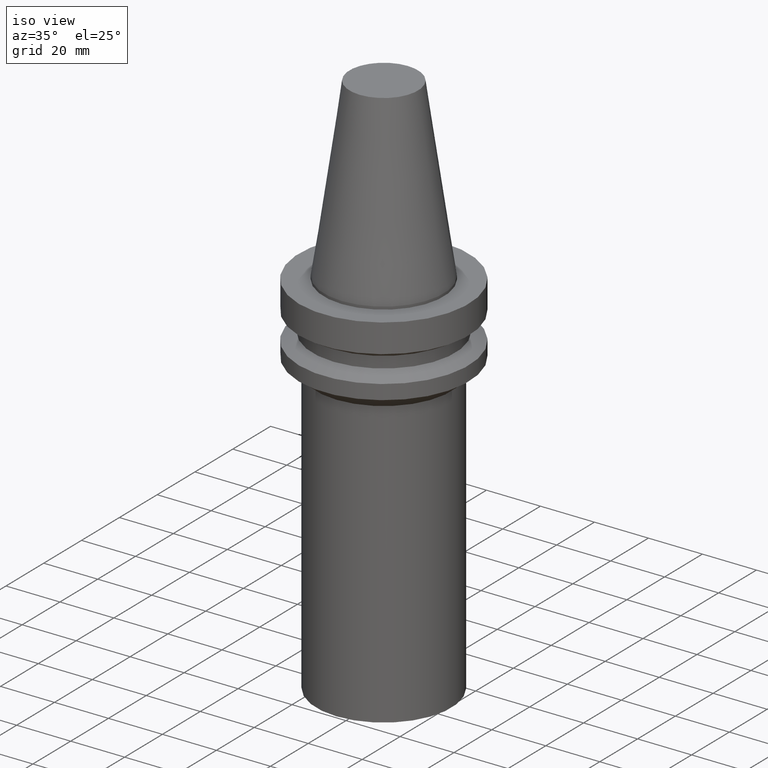
[diagram: clean part render]
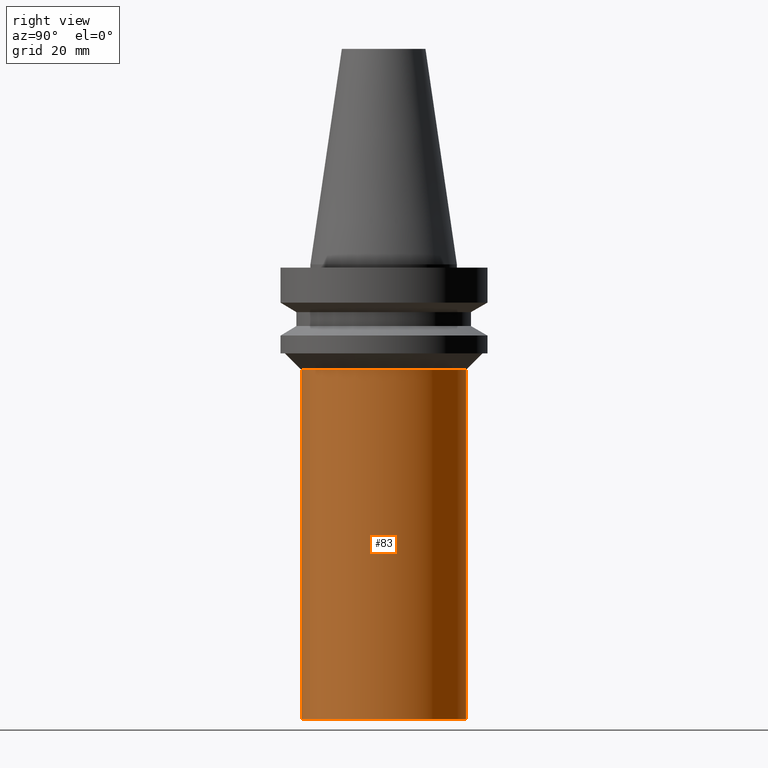
[diagram: tour spotlight — one face highlighted and labeled with its STEP entity id]
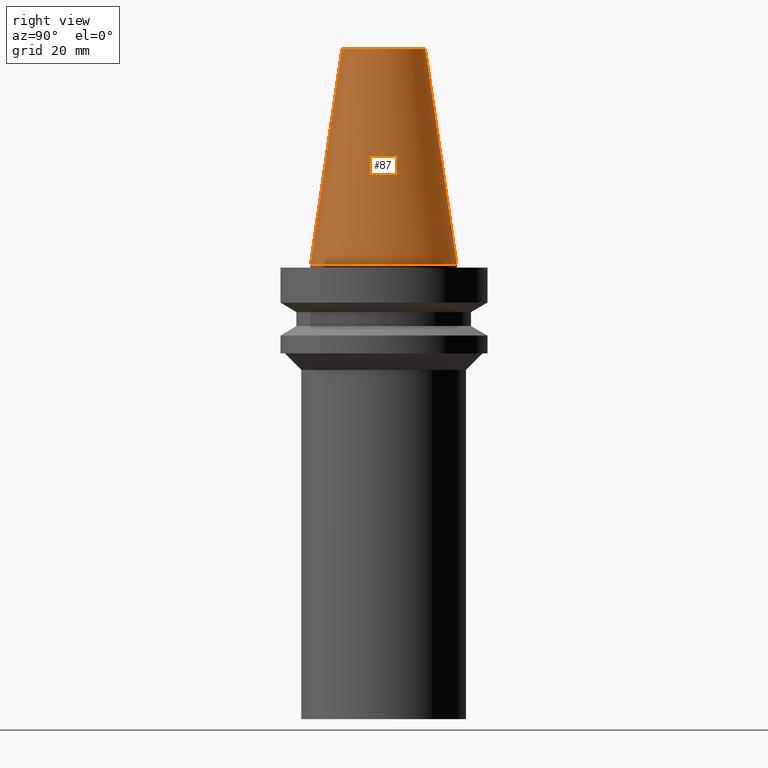
[diagram: tour spotlight — one face highlighted and labeled with its STEP entity id]
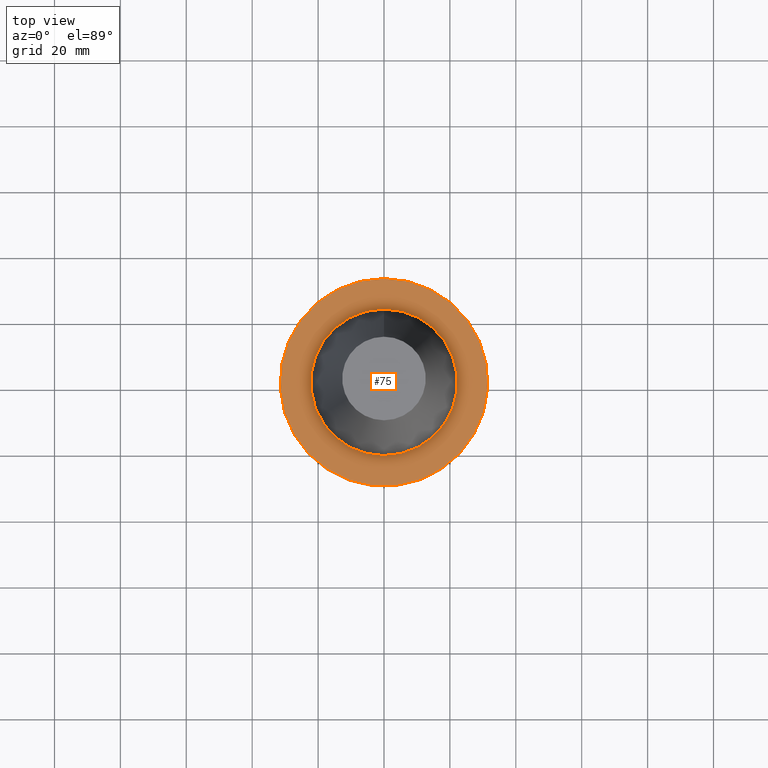
[diagram: tour spotlight — one face highlighted and labeled with its STEP entity id]
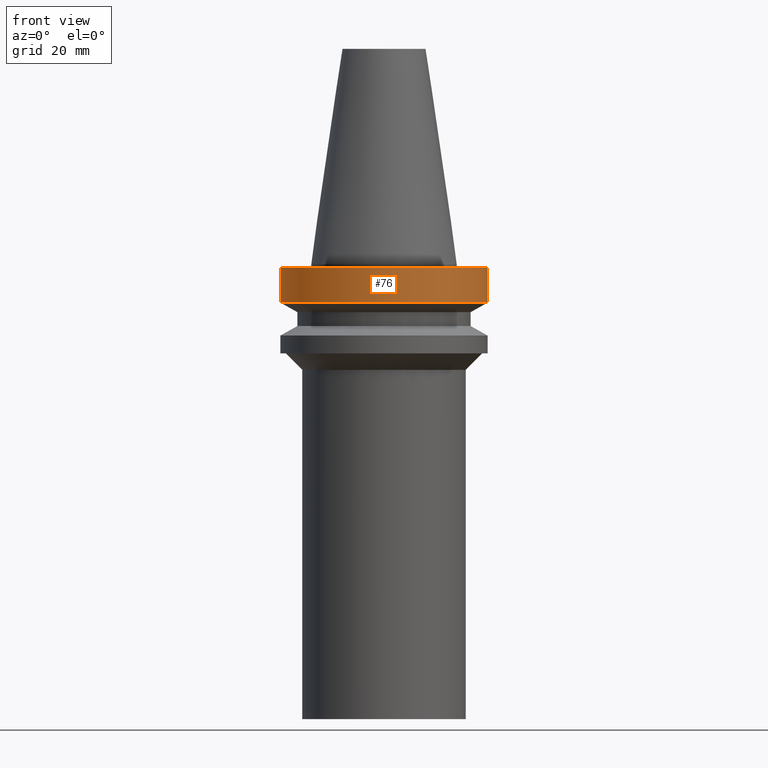
[diagram: tour spotlight — one face highlighted and labeled with its STEP entity id]
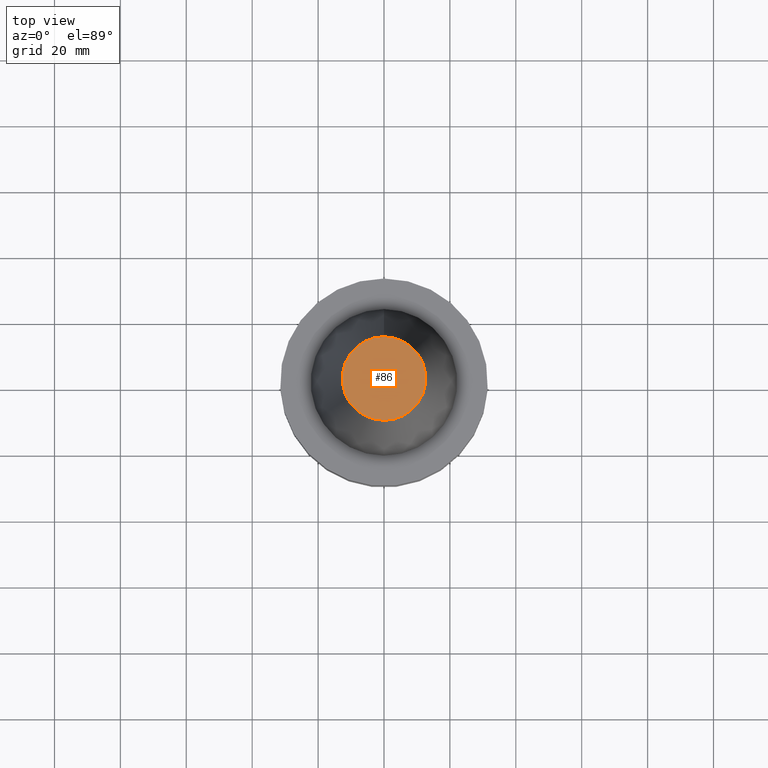
[diagram: tour spotlight — one face highlighted and labeled with its STEP entity id]
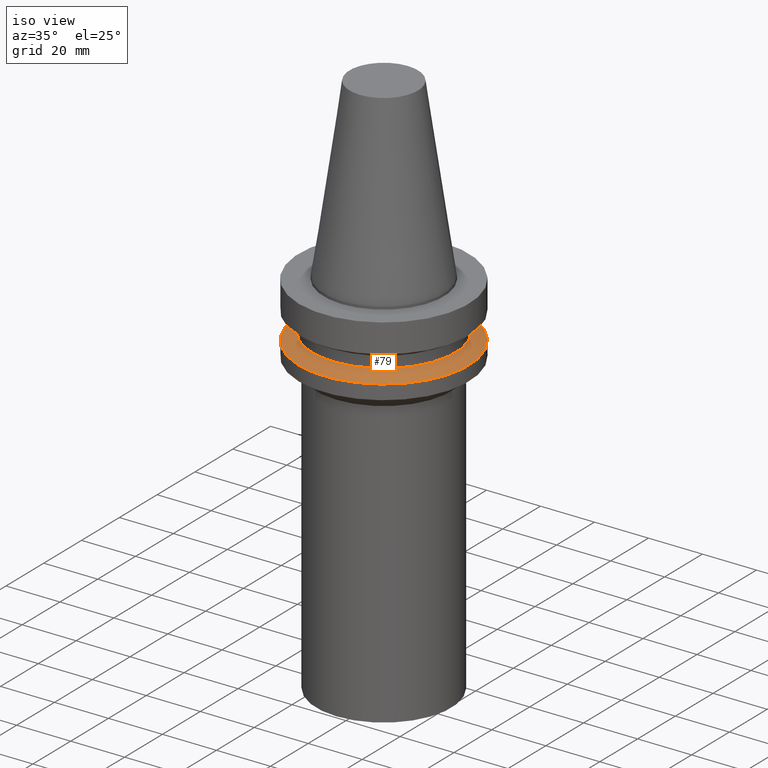
[diagram: tour spotlight — one face highlighted and labeled with its STEP entity id]
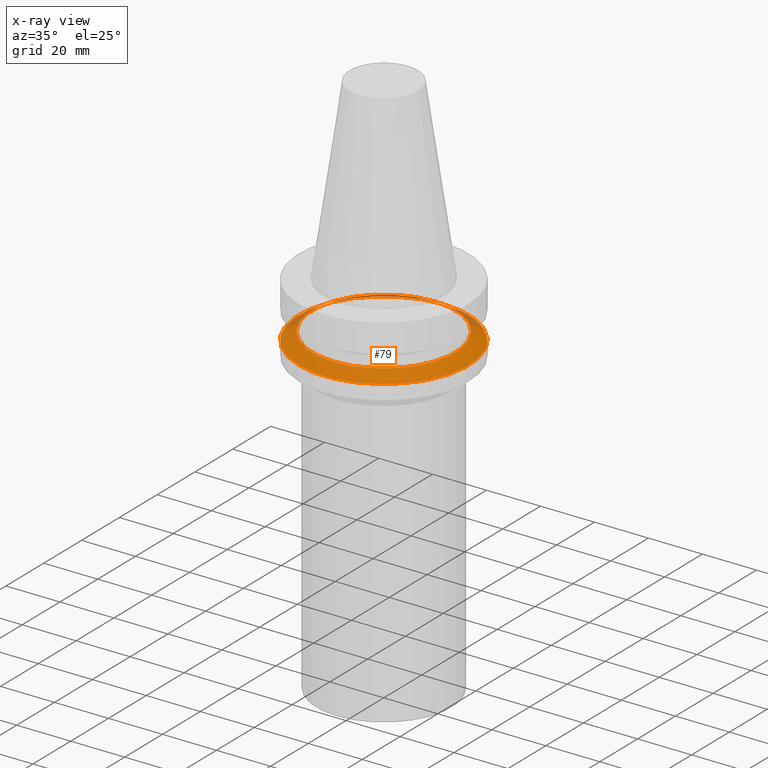
[diagram: x-ray of the same camera — body ghosted, this tour face saturated]
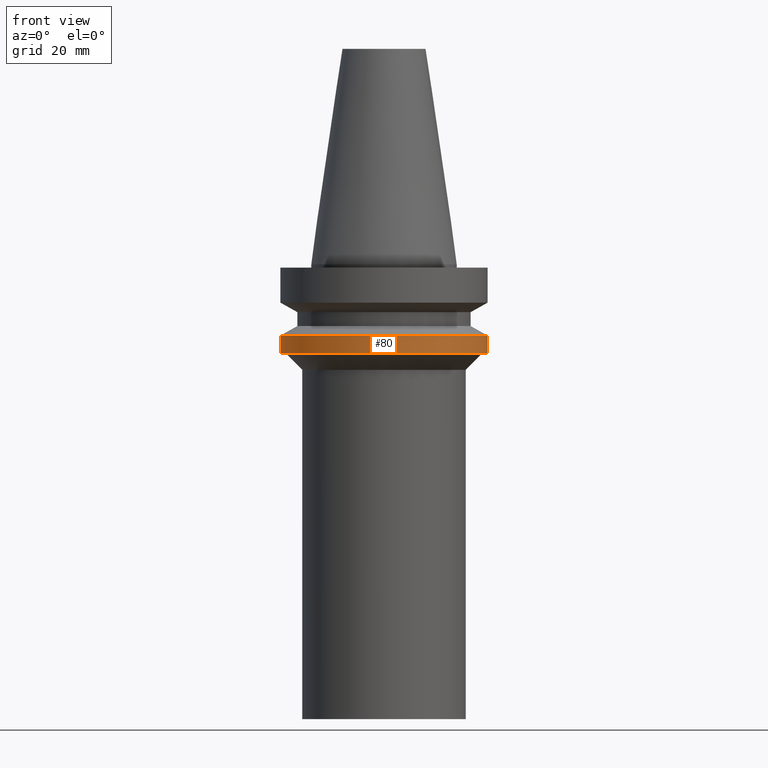
[diagram: tour spotlight — one face highlighted and labeled with its STEP entity id]
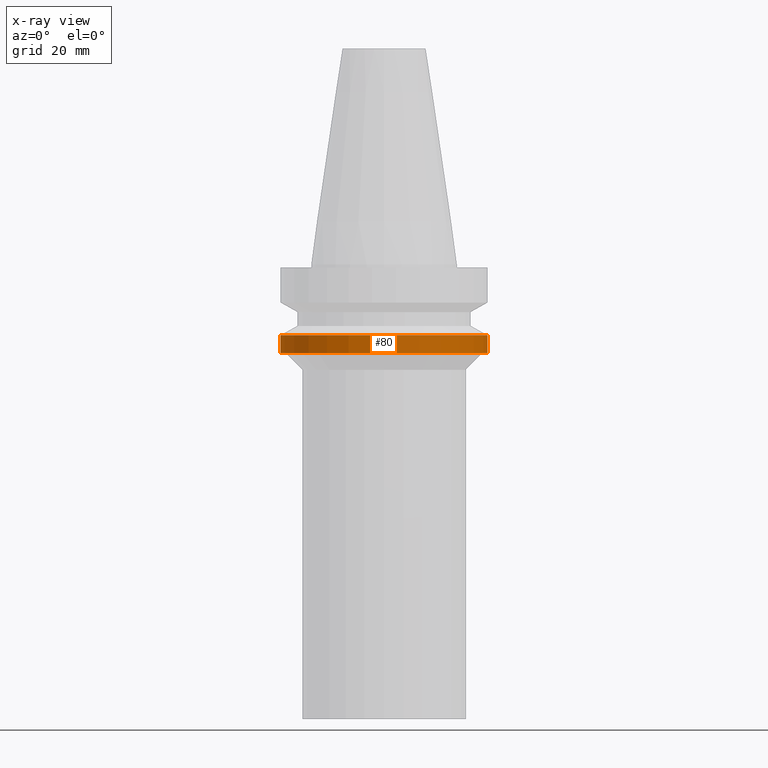
[diagram: x-ray of the same camera — body ghosted, this tour face saturated]
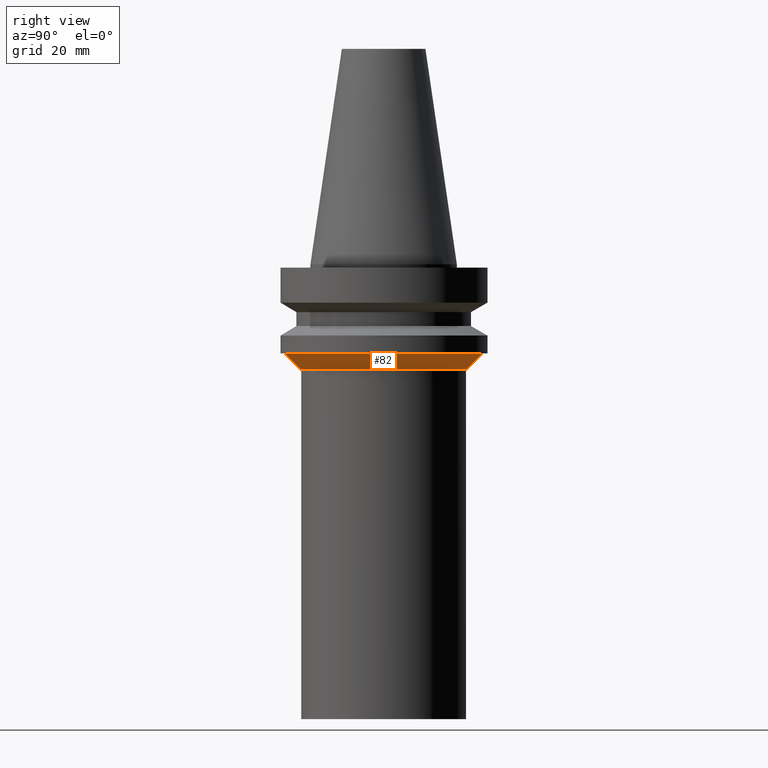
[diagram: tour spotlight — one face highlighted and labeled with its STEP entity id]
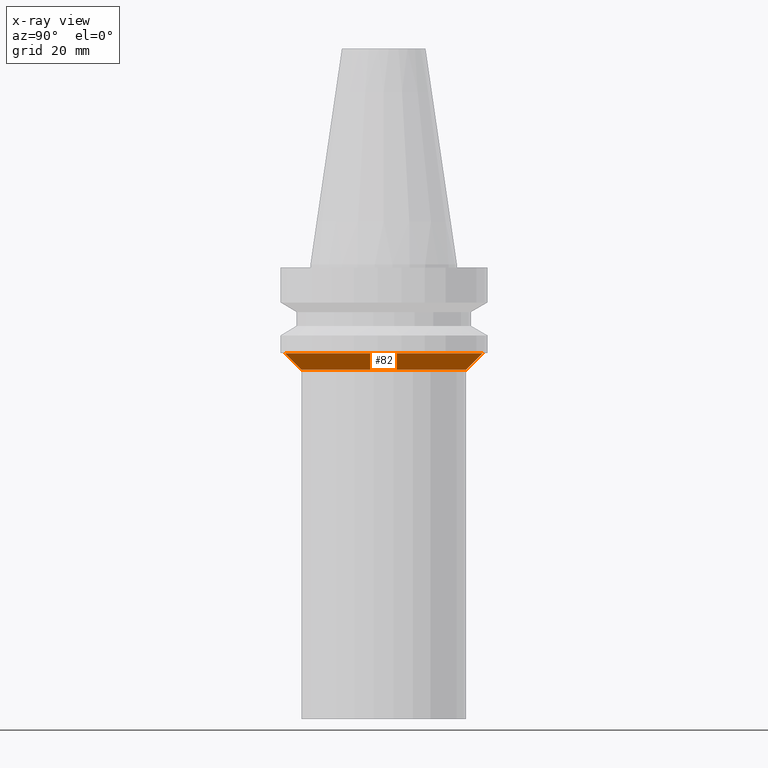
[diagram: x-ray of the same camera — body ghosted, this tour face saturated]
A machine part: a face-by-face anatomy tour. The part has 13 B-rep faces; the first image is the clean iso view, then the 8 largest visible faces are spotlighted one at a time (largest first), each with its STEP entity span.

Face 1 — right view, entity #83. In plain terms, the highlighted cylindrical surface (bore or boss wall) has radius 25 mm, axis along (-0, -0, 1).
Definition (entity closure, byte-faithful):
#83=ADVANCED_FACE('',(#113,#114),#115,.T.);
#113=FACE_BOUND('',#150,.T.);
#114=FACE_BOUND('',#151,.T.);
#115=CYLINDRICAL_SURFACE('',#152,25.0);
#150=EDGE_LOOP('',(#203));
#151=EDGE_LOOP('',(#204));
#152=AXIS2_PLACEMENT_3D('',#205,#206,#207);
#203=ORIENTED_EDGE('',*,*,#235,.F.);
#204=ORIENTED_EDGE('',*,*,#234,.T.);
#205=CARTESIAN_POINT('',(5.20474889637625E-015,1.04094977927525E-014,-85.0));
#206=DIRECTION('',(-6.12323399573677E-017,-1.22464679914735E-016,1.0));
#207=DIRECTION('',(-1.23259516440783E-032,1.0,1.22464679914735E-016));
#234=EDGE_CURVE('',#254,#254,#255,.T.);
#235=EDGE_CURVE('',#256,#256,#257,.T.);
#254=VERTEX_POINT('',#278);
#255=CIRCLE('',#279,25.0);
#256=VERTEX_POINT('',#280);
#257=CIRCLE('',#281,25.0);
#278=CARTESIAN_POINT('',(1.95943487863576E-015,25.0,-32.0));
#279=AXIS2_PLACEMENT_3D('',#310,#311,#312);
#280=CARTESIAN_POINT('',(8.45006291411674E-015,25.0,-138.0));
#281=AXIS2_PLACEMENT_3D('',#313,#314,#315);
#310=CARTESIAN_POINT('',(1.95943487863577E-015,3.91886975727153E-015,-32.0));
#311=DIRECTION('',(6.12323399573677E-017,1.22464679914735E-016,-1.0));
#312=DIRECTION('',(-1.23259516440783E-032,1.0,1.22464679914735E-016));
#313=CARTESIAN_POINT('',(8.45006291411674E-015,1.69001258282335E-014,-138.0));
#314=DIRECTION('',(6.12323399573677E-017,1.22464679914735E-016,-1.0));
#315=DIRECTION('',(-1.23259516440783E-032,1.0,1.22464679914735E-016));

Face 2 — right view, entity #87. In plain terms, the highlighted conical surface has half-angle 8.297 deg.
Definition (entity closure, byte-faithful):
#87=ADVANCED_FACE('',(#123,#124),#125,.T.);
#123=FACE_BOUND('',#160,.T.);
#124=FACE_BOUND('',#161,.T.);
#125=CONICAL_SURFACE('',#162,17.4562500026599,0.144812498159292);
#160=EDGE_LOOP('',(#221));
#161=EDGE_LOOP('',(#222));
#162=AXIS2_PLACEMENT_3D('',#223,#224,#225);
#221=ORIENTED_EDGE('',*,*,#236,.F.);
#222=ORIENTED_EDGE('',*,*,#237,.T.);
#223=CARTESIAN_POINT('',(-2.00229751660592E-015,-4.00459503321184E-015,32.7));
#224=DIRECTION('',(6.12323399573677E-017,1.22464679914735E-016,-1.0));
#225=DIRECTION('',(-1.23259516440783E-032,1.0,1.22464679914735E-016));
#236=EDGE_CURVE('',#258,#258,#259,.T.);
#237=EDGE_CURVE('',#260,#260,#261,.T.);
#258=VERTEX_POINT('',#282);
#259=CIRCLE('',#283,22.225);
#260=VERTEX_POINT('',#284);
#261=CIRCLE('',#285,12.6875000053197);
#282=CARTESIAN_POINT('',(-4.76010997148954E-031,22.225,6.02177751110499E-015));
#283=AXIS2_PLACEMENT_3D('',#316,#317,#318);
#284=CARTESIAN_POINT('',(-4.00459503321185E-015,12.6875000053197,65.4));
#285=AXIS2_PLACEMENT_3D('',#319,#320,#321);
#316=CARTESIAN_POINT('',(-2.02245122175225E-031,-4.0449024435045E-031,3.30291349825984E-015));
#317=DIRECTION('',(6.12323399573677E-017,1.22464679914735E-016,-1.0));
#318=DIRECTION('',(-1.23259516440783E-032,1.0,1.22464679914735E-016));
#319=CARTESIAN_POINT('',(-4.00459503321185E-015,-8.00919006642369E-015,65.4));
#320=DIRECTION('',(6.12323399573677E-017,1.22464679914735E-016,-1.0));
#321=DIRECTION('',(-1.23259516440783E-032,1.0,1.22464679914735E-016));

Face 3 — top view, entity #75. In plain terms, the highlighted planar face has unit normal (-0, -0, 1).
Definition (entity closure, byte-faithful):
#75=ADVANCED_FACE('',(#89,#90),#91,.T.);
#89=FACE_OUTER_BOUND('',#126,.T.);
#90=FACE_BOUND('',#127,.T.);
#91=PLANE('',#128);
#126=EDGE_LOOP('',(#163));
#127=EDGE_LOOP('',(#164));
#128=AXIS2_PLACEMENT_3D('',#165,#166,#167);
#163=ORIENTED_EDGE('',*,*,#226,.F.);
#164=ORIENTED_EDGE('',*,*,#227,.T.);
#165=CARTESIAN_POINT('',(6.12323399573673E-017,26.8625,-0.999999999999997));
#166=DIRECTION('',(-6.12323399573677E-017,-1.22464679914735E-016,1.0));
#167=DIRECTION('',(1.23259516440783E-032,-1.0,-1.22464679914735E-016));
#226=EDGE_CURVE('',#238,#238,#239,.T.);
#227=EDGE_CURVE('',#240,#240,#241,.T.);
#238=VERTEX_POINT('',#262);
#239=CIRCLE('',#263,31.5);
#240=VERTEX_POINT('',#264);
#241=CIRCLE('',#265,22.225);
#262=CARTESIAN_POINT('',(6.12323399573673E-017,31.5,-0.999999999999996));
#263=AXIS2_PLACEMENT_3D('',#286,#287,#288);
#264=CARTESIAN_POINT('',(6.12323399573674E-017,22.225,-0.999999999999997));
#265=AXIS2_PLACEMENT_3D('',#289,#290,#291);
#286=CARTESIAN_POINT('',(6.12323399573677E-017,1.22464679914735E-016,-1.0));
#287=DIRECTION('',(6.12323399573677E-017,1.22464679914735E-016,-1.0));
#288=DIRECTION('',(-1.23259516440783E-032,1.0,1.22464679914735E-016));
#289=CARTESIAN_POINT('',(6.12323399573677E-017,1.22464679914735E-016,-1.0));
#290=DIRECTION('',(6.12323399573677E-017,1.22464679914735E-016,-1.0));
#291=DIRECTION('',(-1.23259516440783E-032,1.0,1.22464679914735E-016));

Face 4 — front view, entity #76. In plain terms, the highlighted cylindrical surface (bore or boss wall) has radius 31.5 mm, axis along (-0, -0, 1).
Definition (entity closure, byte-faithful):
#76=ADVANCED_FACE('',(#92,#93),#94,.T.);
#92=FACE_BOUND('',#129,.T.);
#93=FACE_BOUND('',#130,.T.);
#94=CYLINDRICAL_SURFACE('',#131,31.5);
#129=EDGE_LOOP('',(#168));
#130=EDGE_LOOP('',(#169));
#131=AXIS2_PLACEMENT_3D('',#170,#171,#172);
#168=ORIENTED_EDGE('',*,*,#228,.F.);
#169=ORIENTED_EDGE('',*,*,#226,.T.);
#170=CARTESIAN_POINT('',(3.85763741731416E-016,7.71527483462832E-016,-6.3));
#171=DIRECTION('',(-6.12323399573677E-017,-1.22464679914735E-016,1.0));
#172=DIRECTION('',(-1.23259516440783E-032,1.0,1.22464679914735E-016));
#226=EDGE_CURVE('',#238,#238,#239,.T.);
#228=EDGE_CURVE('',#242,#242,#243,.T.);
#238=VERTEX_POINT('',#262);
#239=CIRCLE('',#263,31.5);
#242=VERTEX_POINT('',#266);
#243=CIRCLE('',#267,31.5);
#262=CARTESIAN_POINT('',(6.12323399573673E-017,31.5,-0.999999999999996));
#263=AXIS2_PLACEMENT_3D('',#286,#287,#288);
#266=CARTESIAN_POINT('',(7.10295143505464E-016,31.5,-11.6));
#267=AXIS2_PLACEMENT_3D('',#292,#293,#294);
#286=CARTESIAN_POINT('',(6.12323399573677E-017,1.22464679914735E-016,-1.0));
#287=DIRECTION('',(6.12323399573677E-017,1.22464679914735E-016,-1.0));
#288=DIRECTION('',(-1.23259516440783E-032,1.0,1.22464679914735E-016));
#292=CARTESIAN_POINT('',(7.10295143505465E-016,1.42059028701093E-015,-11.6));
#293=DIRECTION('',(6.12323399573677E-017,1.22464679914735E-016,-1.0));
#294=DIRECTION('',(-1.23259516440783E-032,1.0,1.22464679914735E-016));

Face 5 — top view, entity #86. In plain terms, the highlighted planar face has unit normal (-0, -0, 1).
Definition (entity closure, byte-faithful):
#86=ADVANCED_FACE('',(#121),#122,.T.);
#121=FACE_OUTER_BOUND('',#158,.T.);
#122=PLANE('',#159);
#158=EDGE_LOOP('',(#217));
#159=AXIS2_PLACEMENT_3D('',#218,#219,#220);
#217=ORIENTED_EDGE('',*,*,#237,.F.);
#218=CARTESIAN_POINT('',(-4.00459503321185E-015,6.34375000265984,65.4));
#219=DIRECTION('',(-6.12323399573677E-017,-1.22464679914735E-016,1.0));
#220=DIRECTION('',(1.23259516440783E-032,-1.0,-1.22464679914735E-016));
#237=EDGE_CURVE('',#260,#260,#261,.T.);
#260=VERTEX_POINT('',#284);
#261=CIRCLE('',#285,12.6875000053197);
#284=CARTESIAN_POINT('',(-4.00459503321185E-015,12.6875000053197,65.4));
#285=AXIS2_PLACEMENT_3D('',#319,#320,#321);
#319=CARTESIAN_POINT('',(-4.00459503321185E-015,-8.00919006642369E-015,65.4));
#320=DIRECTION('',(6.12323399573677E-017,1.22464679914735E-016,-1.0));
#321=DIRECTION('',(-1.23259516440783E-032,1.0,1.22464679914735E-016));

Face 6 — iso view, entity #79. An x-ray twin of the same camera follows (body ghosted, this face saturated) — the face is partly hidden behind the body. In plain terms, the highlighted conical surface has half-angle 60 deg.
Definition (entity closure, byte-faithful):
#79=ADVANCED_FACE('',(#101,#102),#103,.T.);
#101=FACE_BOUND('',#138,.T.);
#102=FACE_BOUND('',#139,.T.);
#103=CONICAL_SURFACE('',#140,29.0,1.04719755058882);
#138=EDGE_LOOP('',(#183));
#139=EDGE_LOOP('',(#184));
#140=AXIS2_PLACEMENT_3D('',#185,#186,#187);
#183=ORIENTED_EDGE('',*,*,#231,.F.);
#184=ORIENTED_EDGE('',*,*,#230,.T.);
#185=CARTESIAN_POINT('',(1.23423727306135E-015,2.46847454612269E-015,-20.156624325));
#186=DIRECTION('',(6.12323399573677E-017,1.22464679914735E-016,-1.0));
#187=DIRECTION('',(-1.23259516440783E-032,1.0,1.22464679914735E-016));
#230=EDGE_CURVE('',#246,#246,#247,.T.);
#231=EDGE_CURVE('',#248,#248,#249,.T.);
#246=VERTEX_POINT('',#270);
#247=CIRCLE('',#271,26.5);
#248=VERTEX_POINT('',#272);
#249=CIRCLE('',#273,31.5);
#270=CARTESIAN_POINT('',(1.14585600304355E-015,26.5,-18.71324865));
#271=AXIS2_PLACEMENT_3D('',#298,#299,#300);
#272=CARTESIAN_POINT('',(1.32261854307914E-015,31.5,-21.6));
#273=AXIS2_PLACEMENT_3D('',#301,#302,#303);
#298=CARTESIAN_POINT('',(1.14585600304355E-015,2.2917120060871E-015,-18.71324865));
#299=DIRECTION('',(6.12323399573677E-017,1.22464679914735E-016,-1.0));
#300=DIRECTION('',(-1.23259516440783E-032,1.0,1.22464679914735E-016));
#301=CARTESIAN_POINT('',(1.32261854307914E-015,2.64523708615828E-015,-21.6));
#302=DIRECTION('',(6.12323399573677E-017,1.22464679914735E-016,-1.0));
#303=DIRECTION('',(-1.23259516440783E-032,1.0,1.22464679914735E-016));

Face 7 — front view, entity #80. An x-ray twin of the same camera follows (body ghosted, this face saturated) — the face is partly hidden behind the body. In plain terms, the highlighted cylindrical surface (bore or boss wall) has radius 31.5 mm, axis along (-0, -0, 1).
Definition (entity closure, byte-faithful):
#80=ADVANCED_FACE('',(#104,#105),#106,.T.);
#104=FACE_BOUND('',#141,.T.);
#105=FACE_BOUND('',#142,.T.);
#106=CYLINDRICAL_SURFACE('',#143,31.5);
#141=EDGE_LOOP('',(#188));
#142=EDGE_LOOP('',(#189));
#143=AXIS2_PLACEMENT_3D('',#190,#191,#192);
#188=ORIENTED_EDGE('',*,*,#232,.F.);
#189=ORIENTED_EDGE('',*,*,#231,.T.);
#190=CARTESIAN_POINT('',(1.48794586096403E-015,2.97589172192807E-015,-24.3));
#191=DIRECTION('',(-6.12323399573677E-017,-1.22464679914735E-016,1.0));
#192=DIRECTION('',(-1.23259516440783E-032,1.0,1.22464679914735E-016));
#231=EDGE_CURVE('',#248,#248,#249,.T.);
#232=EDGE_CURVE('',#250,#250,#251,.T.);
#248=VERTEX_POINT('',#272);
#249=CIRCLE('',#273,31.5);
#250=VERTEX_POINT('',#274);
#251=CIRCLE('',#275,31.5);
#272=CARTESIAN_POINT('',(1.32261854307914E-015,31.5,-21.6));
#273=AXIS2_PLACEMENT_3D('',#301,#302,#303);
#274=CARTESIAN_POINT('',(1.65327317884893E-015,31.5,-27.0));
#275=AXIS2_PLACEMENT_3D('',#304,#305,#306);
#301=CARTESIAN_POINT('',(1.32261854307914E-015,2.64523708615828E-015,-21.6));
#302=DIRECTION('',(6.12323399573677E-017,1.22464679914735E-016,-1.0));
#303=DIRECTION('',(-1.23259516440783E-032,1.0,1.22464679914735E-016));
#304=CARTESIAN_POINT('',(1.65327317884893E-015,3.30654635769785E-015,-27.0));
#305=DIRECTION('',(6.12323399573677E-017,1.22464679914735E-016,-1.0));
#306=DIRECTION('',(-1.23259516440783E-032,1.0,1.22464679914735E-016));

Face 8 — right view, entity #82. An x-ray twin of the same camera follows (body ghosted, this face saturated) — the face is partly hidden behind the body. In plain terms, the highlighted conical surface has half-angle 45 deg.
Definition (entity closure, byte-faithful):
#82=ADVANCED_FACE('',(#110,#111),#112,.T.);
#110=FACE_BOUND('',#147,.T.);
#111=FACE_BOUND('',#148,.T.);
#112=CONICAL_SURFACE('',#149,27.5,0.785398163397448);
#147=EDGE_LOOP('',(#198));
#148=EDGE_LOOP('',(#199));
#149=AXIS2_PLACEMENT_3D('',#200,#201,#202);
#198=ORIENTED_EDGE('',*,*,#234,.F.);
#199=ORIENTED_EDGE('',*,*,#233,.T.);
#200=CARTESIAN_POINT('',(1.80635402874235E-015,3.61270805748469E-015,-29.5));
#201=DIRECTION('',(-6.12323399573677E-017,-1.22464679914735E-016,1.0));
#202=DIRECTION('',(-1.23259516440783E-032,1.0,1.22464679914735E-016));
#233=EDGE_CURVE('',#252,#252,#253,.T.);
#234=EDGE_CURVE('',#254,#254,#255,.T.);
#252=VERTEX_POINT('',#276);
#253=CIRCLE('',#277,30.0);
#254=VERTEX_POINT('',#278);
#255=CIRCLE('',#279,25.0);
#276=CARTESIAN_POINT('',(1.65327317884893E-015,30.0,-27.0));
#277=AXIS2_PLACEMENT_3D('',#307,#308,#309);
#278=CARTESIAN_POINT('',(1.95943487863576E-015,25.0,-32.0));
#279=AXIS2_PLACEMENT_3D('',#310,#311,#312);
#307=CARTESIAN_POINT('',(1.65327317884893E-015,3.30654635769785E-015,-27.0));
#308=DIRECTION('',(6.12323399573677E-017,1.22464679914735E-016,-1.0));
#309=DIRECTION('',(-1.23259516440783E-032,1.0,1.22464679914735E-016));
#310=CARTESIAN_POINT('',(1.95943487863577E-015,3.91886975727153E-015,-32.0));
#311=DIRECTION('',(6.12323399573677E-017,1.22464679914735E-016,-1.0));
#312=DIRECTION('',(-1.23259516440783E-032,1.0,1.22464679914735E-016));